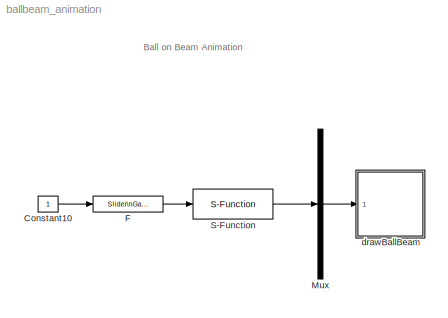
MODEL ballbeam_animation
KIND model
BLOCK [Constant] Constant10
  SID = 1
BLOCK [Reference] F  REF=simulink/Math\nOperations/Slider\nGain
  Ports = [1, 1]
  SID = 10
  SourceBlock = simulink/Math\nOperations/Slider\nGain
  SourceType = Slider Gain
  gain = 7.8
  high = 100
  low = -100
BLOCK [Mux] Mux
  DisplayOption = bar
  Inputs = 1
  Ports = [1, 1]
  SID = 3
BLOCK [S-Function] S-Function
  EnableBusSupport = off
  FunctionName = ball_dynamics
  Parameters = AP
  Ports = [1, 1]
  SID = 13
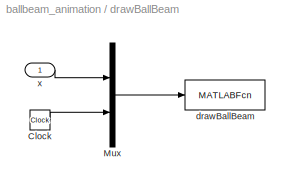
BLOCK [SubSystem] drawBallBeam
  Ports = [1]
  RequestExecContextInheritance = off
  SID = 4
BLOCK [Clock] drawBallBeam/Clock
  SID = 6
BLOCK [Mux] drawBallBeam/Mux
  DisplayOption = bar
  Inputs = 2
  Ports = [2, 1]
  SID = 7
BLOCK [MATLABFcn] drawBallBeam/drawBallBeam
  MATLABFcn = drawBallBeam(u,L,R)
  OutputDimensions = 0
  Ports = [1]
  SID = 8
  SampleTime = 0.001
BLOCK [Inport] drawBallBeam/x
  IconDisplay = Port number
  SID = 5
ANNOTATION (root): Ball on Beam Animation
LINE Constant10:1 -> F:1
LINE F:1 -> S-Function:1
LINE Mux:1 -> drawBallBeam:1
LINE S-Function:1 -> Mux:1
LINE drawBallBeam/Clock:1 -> drawBallBeam/Mux:2
LINE drawBallBeam/Mux:1 -> drawBallBeam/drawBallBeam:1
LINE drawBallBeam/x:1 -> drawBallBeam/Mux:1
